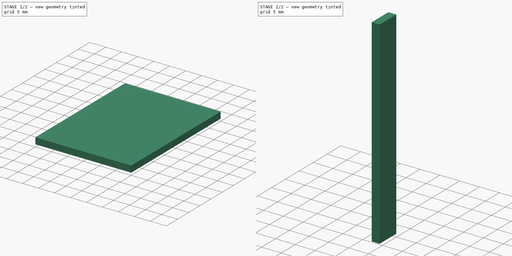
[diagram: build sequence overview — one tinted view per stage of 2, left to right]
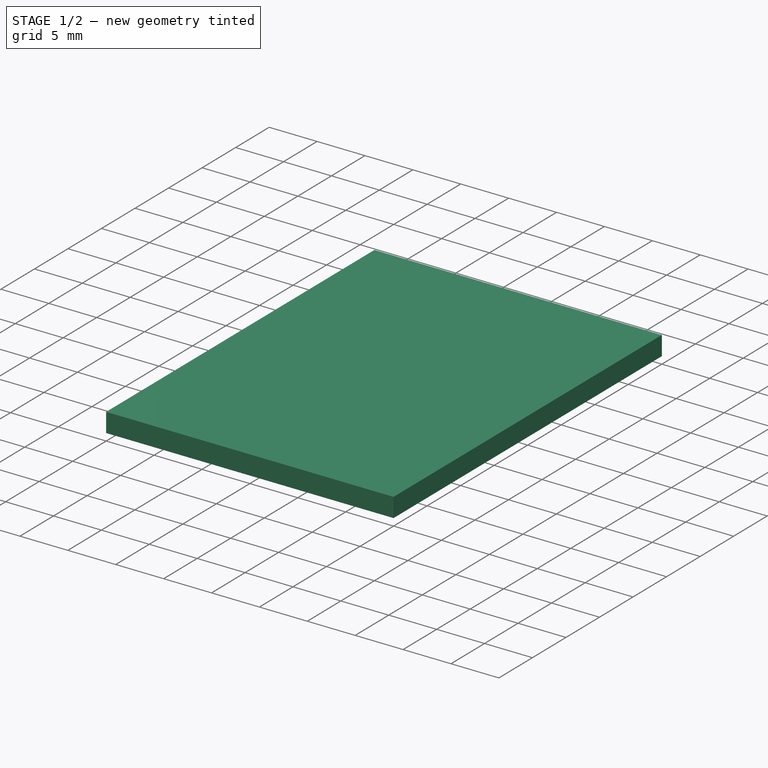
[diagram: stage 1 of 2 — iso view after this stage's code; geometry added in this stage tinted green]
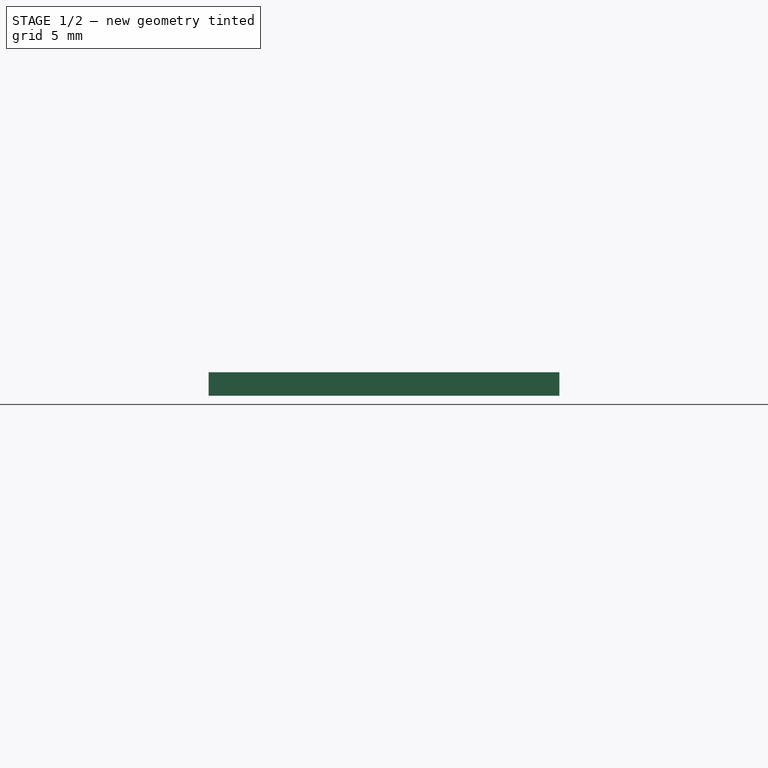
[diagram: stage 1 of 2 — front view after this stage's code; geometry added in this stage tinted green]
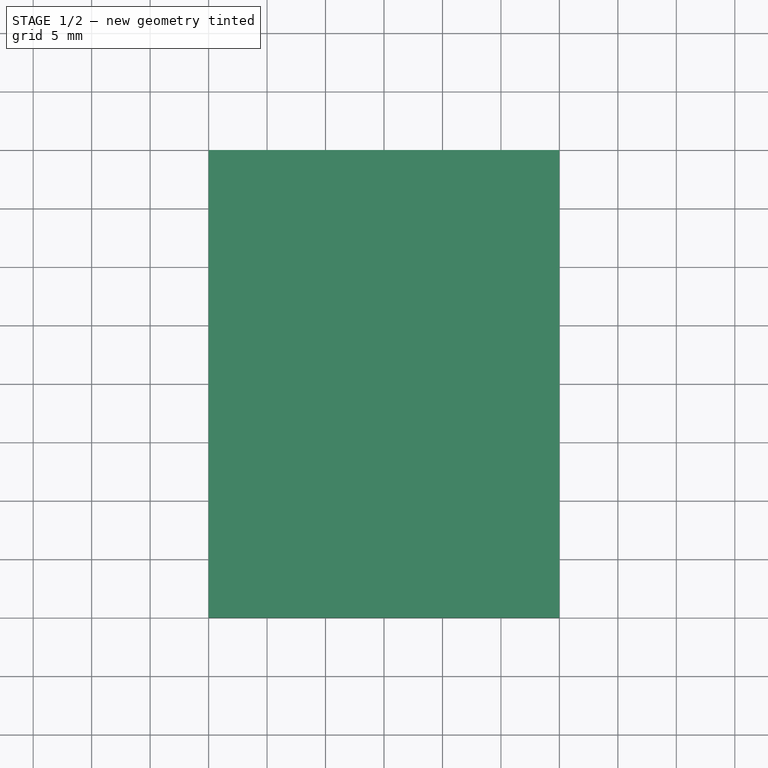
[diagram: stage 1 of 2 — top view after this stage's code; geometry added in this stage tinted green]
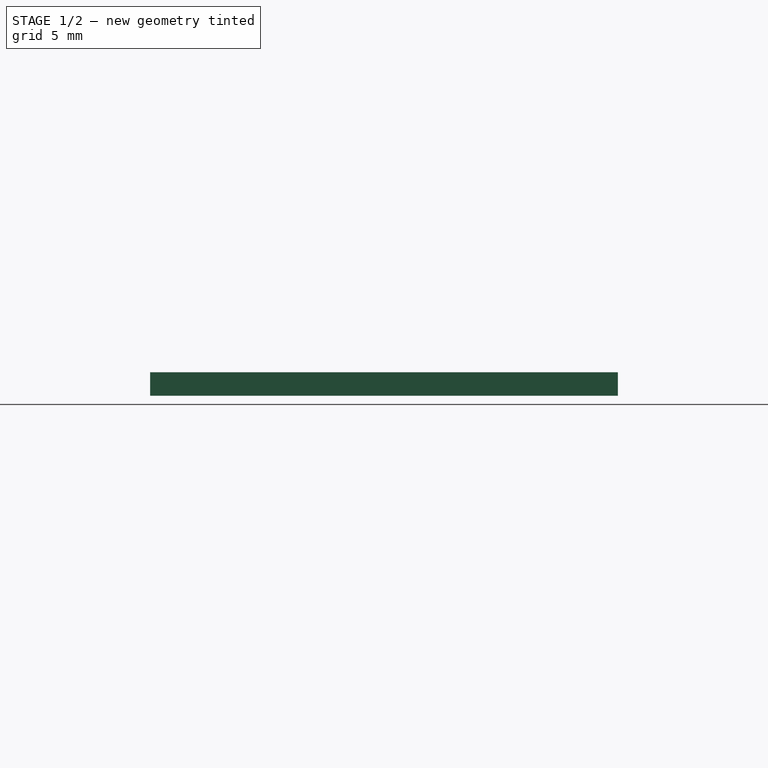
[diagram: stage 1 of 2 — right view after this stage's code; geometry added in this stage tinted green]
FCSTD DOCUMENT  (FreeCAD 0.19R)
Label: MuebleSimple
License: All rights reserved
LicenseURL: http://en.wikipedia.org/wiki/All_rights_reserved
objects: App::MeasureDistance×4, Sketcher::SketchObject×2, PartDesign::Pad×2, PartDesign::Body×2, TechDraw::DrawViewSymbol×2, Spreadsheet::Sheet×1, PartDesign::ShapeBinder×1, TechDraw::DrawSVGTemplate×1, TechDraw::DrawPage×1
note: 9 computed .brp shape members not serialized (recipe doc carries the construction recipe); baked Part::Feature solids carry a one-line shape summary decoded from their .brp

FEATURE [Sketcher::SketchObject] Sketch
  FullyConstrained = true
  MapMode = 5
  Support = -> [XY_Plane]
  expr: Constraints[8] = Spreadsheet.TableroAncho
  expr: Constraints[9] = Spreadsheet.TableroAlto
  sketch-geometry (4):
    g0: LineSegment StartX=-15 StartY=20 StartZ=0 EndX=15 EndY=20 EndZ=0
    g1: LineSegment StartX=15 StartY=20 StartZ=0 EndX=15 EndY=-20 EndZ=0
    g2: LineSegment StartX=15 StartY=-20 StartZ=0 EndX=-15 EndY=-20 EndZ=0
    g3: LineSegment StartX=-15 StartY=-20 StartZ=0 EndX=-15 EndY=20 EndZ=0
  constraints (11):
    c: Coincident(g0,g1)
    c: Coincident(g1,g2)
    c: Coincident(g2,g3)
    c: Coincident(g3,g0)
    c: Horizontal(g0)
    c: Horizontal(g2)
    c: Vertical(g1)
    c: Vertical(g3)
    c: DistanceX(g0,g0) = 30
    c: DistanceY(g1,g1) = 40
    c: Symmetric(g0,g1,g-1)
FEATURE [PartDesign::Pad] Pad
  Direction = (1,1,1)
  Length = 2
  Length2 = 100
  Profile = -> Sketch
  Type = 0
  expr: Length = Spreadsheet.EspesorMaterial
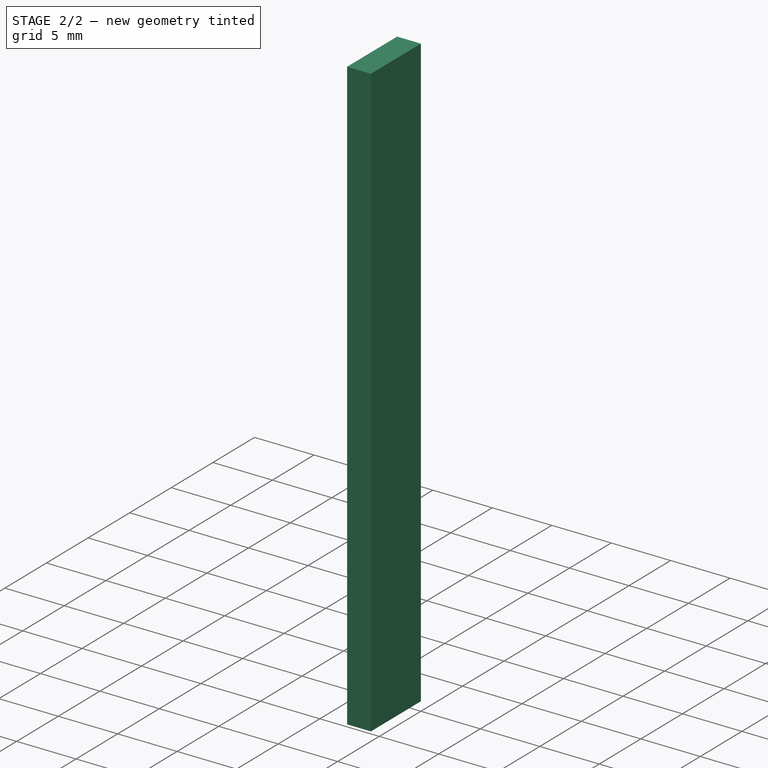
[diagram: stage 2 of 2 — iso view after this stage's code; geometry added in this stage tinted green]
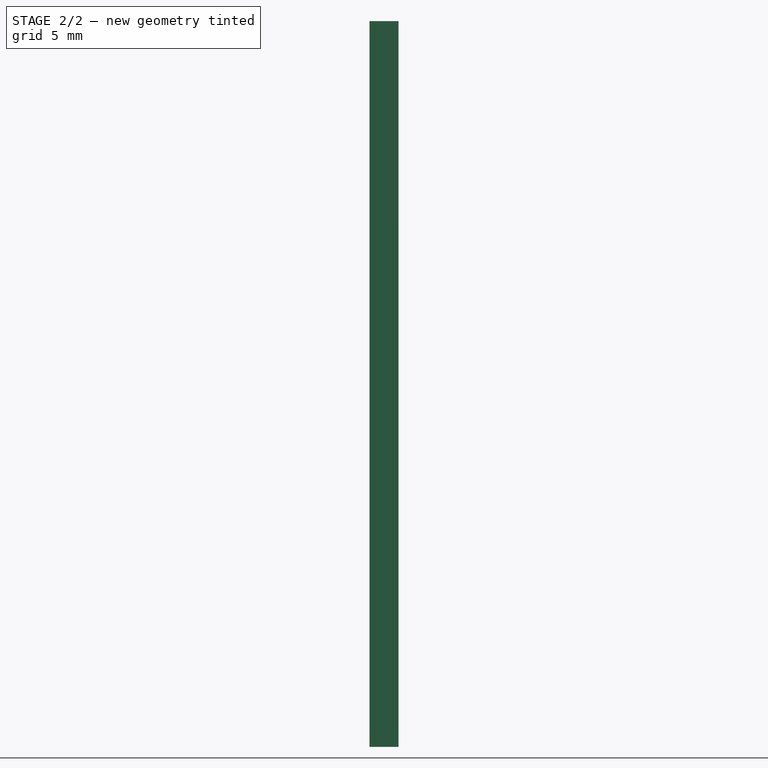
[diagram: stage 2 of 2 — front view after this stage's code; geometry added in this stage tinted green]
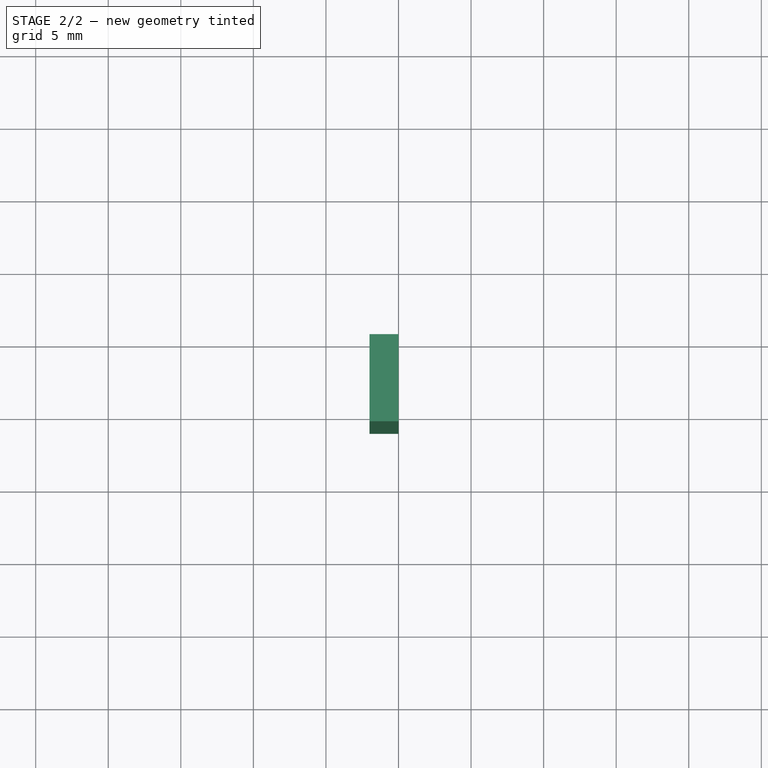
[diagram: stage 2 of 2 — top view after this stage's code; geometry added in this stage tinted green]
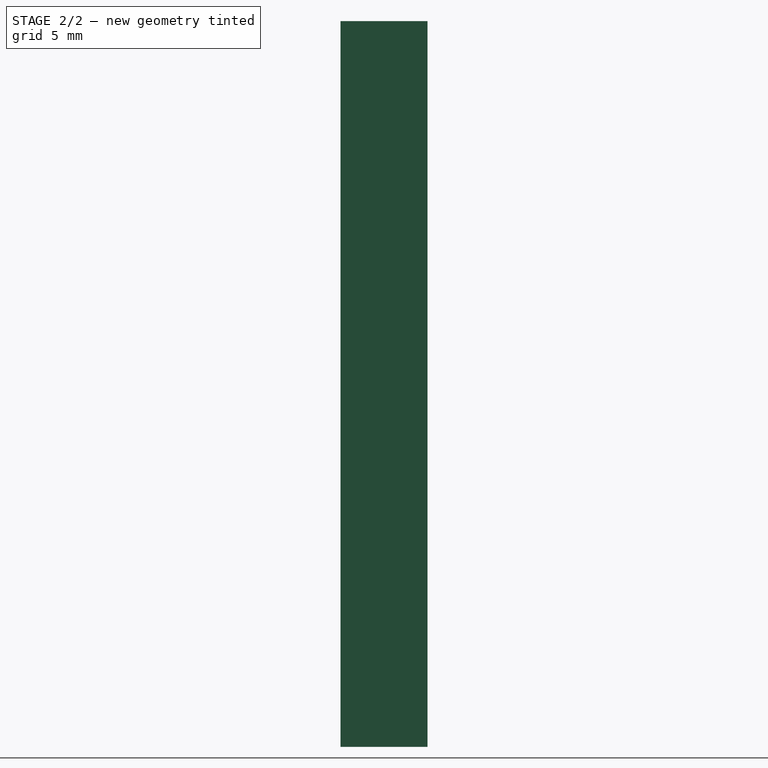
[diagram: stage 2 of 2 — right view after this stage's code; geometry added in this stage tinted green]
FEATURE [PartDesign::Body] Body  label="Tablero"
  Group = -> [Sketch,Pad]
  Origin = -> Origin
  Tip = -> Pad
FEATURE [Spreadsheet::Sheet] Spreadsheet
  cells = A1=Espesor Material; B1(EspesorMaterial)==2mm; A2=Tablero Ancho; B2(TableroAncho)==30mm; A3=Tablero Alto; B3(TableroAlto)==40mm; A4=Pata Ancho; B4(PataAncho)==6mm; A5=Pata Alto; B5(PataAlto)==50mm
FEATURE [PartDesign::ShapeBinder] ShapeBinder
  Placement = pos=(0,0,2) rot=(0,0,1;0rad)
  Support = -> [Pad]
  TraceSupport = false
FEATURE [Sketcher::SketchObject] Sketch001
  AttachmentOffset = pos=(0,0,2) rot=(0,0,1;0rad)
  ExternalGeometry = -> [ShapeBinder]
  FullyConstrained = true
  MapMode = 5
  Placement = pos=(0,0,2) rot=(0,0,1;0rad)
  Support = -> [XY_Plane001]
  expr: .AttachmentOffset.Base.z = Spreadsheet.EspesorMaterial
  expr: Constraints[9] = Spreadsheet.PataAncho
  expr: Constraints[8] = Spreadsheet.EspesorMaterial
  sketch-geometry (4):
    g0: LineSegment StartX=13 StartY=20 StartZ=0 EndX=15 EndY=20 EndZ=0
    g1: LineSegment StartX=15 StartY=20 StartZ=0 EndX=15 EndY=14 EndZ=0
    g2: LineSegment StartX=15 StartY=14 StartZ=0 EndX=13 EndY=14 EndZ=0
    g3: LineSegment StartX=13 StartY=14 StartZ=0 EndX=13 EndY=20 EndZ=0
  constraints (11):
    c: Coincident(g0,g1)
    c: Coincident(g1,g2)
    c: Coincident(g2,g3)
    c: Coincident(g3,g0)
    c: Horizontal(g0)
    c: Horizontal(g2)
    c: Vertical(g1)
    c: Vertical(g3)
    c: DistanceX(g0,g0) = 2
    c: DistanceY(g1,g1) = 6
    c: Coincident(g0,g-3)
FEATURE [PartDesign::Pad] Pad001
  Direction = (1,1,1)
  Length = 50
  Length2 = 100
  Profile = -> Sketch001
  Type = 0
  expr: Length = Spreadsheet.PataAlto
FEATURE [PartDesign::Body] Body001  label="Pata"
  Group = -> [Pad001,ShapeBinder,Sketch001]
  Origin = -> Origin001
FEATURE [TechDraw::DrawSVGTemplate] Template
  EditableTexts = Designed_by_Name=Designed by Name; Drawing_number=Drawing number; FC-Date=Date; FC-SC=Scale; FC-SH=Sheet; FC-Title=Title; Subtitle=Subtitle; Weight=Weight
  Height = 210
  Orientation = 1
  Width = 297
FEATURE [App::MeasureDistance] Distance  label="Distance: 40.00 mm"
  Distance = 40
  P1 = (-15,20,2)
  P2 = (-15,-20,2)
FEATURE [App::MeasureDistance] Distance001  label="Distance: 30.00 mm"
  Distance = 30
  P1 = (-15,20,2)
  P2 = (15,20,2)
FEATURE [TechDraw::DrawViewSymbol] ActiveView
  LockPosition = false
  Rotation = 0
  ScaleType = 2
  Symbol = <blob: 3401 chars omitted>
  X = 17.2013
  Y = 146.688
FEATURE [App::MeasureDistance] Distance002  label="Distance: 6.00 mm"
  Distance = 6
  P1 = (15,14,52)
  P2 = (15,20,52)
FEATURE [App::MeasureDistance] Distance003  label="Distance: 50.00 mm"
  Distance = 50
  P1 = (15,14,52)
  P2 = (15,14,2)
FEATURE [TechDraw::DrawViewSymbol] ActiveView001
  LockPosition = false
  Rotation = 0
  ScaleType = 2
  Symbol = <blob: 3378 chars omitted>
  X = 55.3831
  Y = 126.039
FEATURE [TechDraw::DrawPage] Page
  KeepUpdated = true
  NextBalloonIndex = 1
  ProjectionType = 0
  Template = -> Template
  Views = -> [ActiveView,ActiveView001]
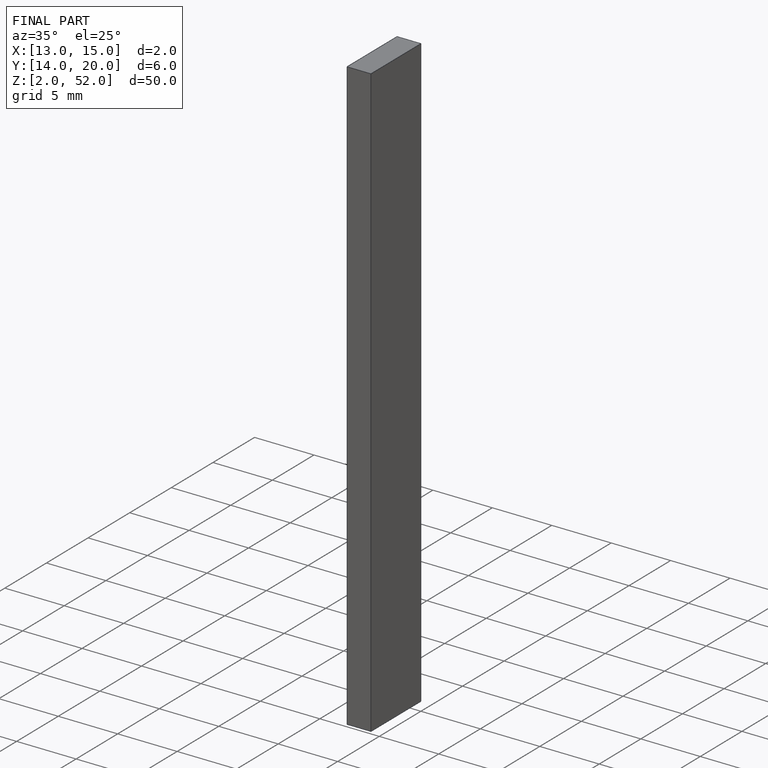
[diagram: finished part — iso view with bounding-box wireframe]
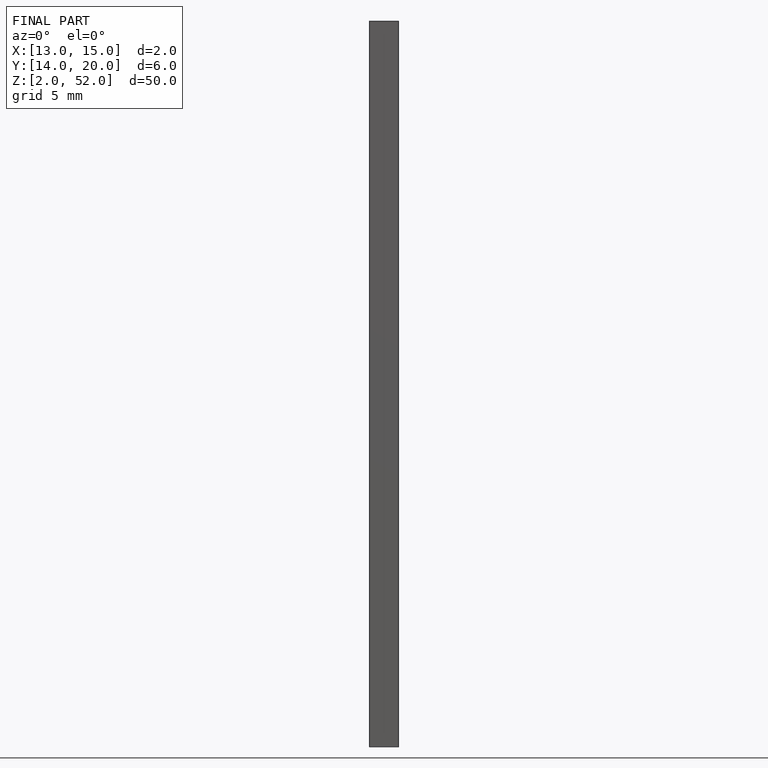
[diagram: finished part — front view with bounding-box wireframe]
